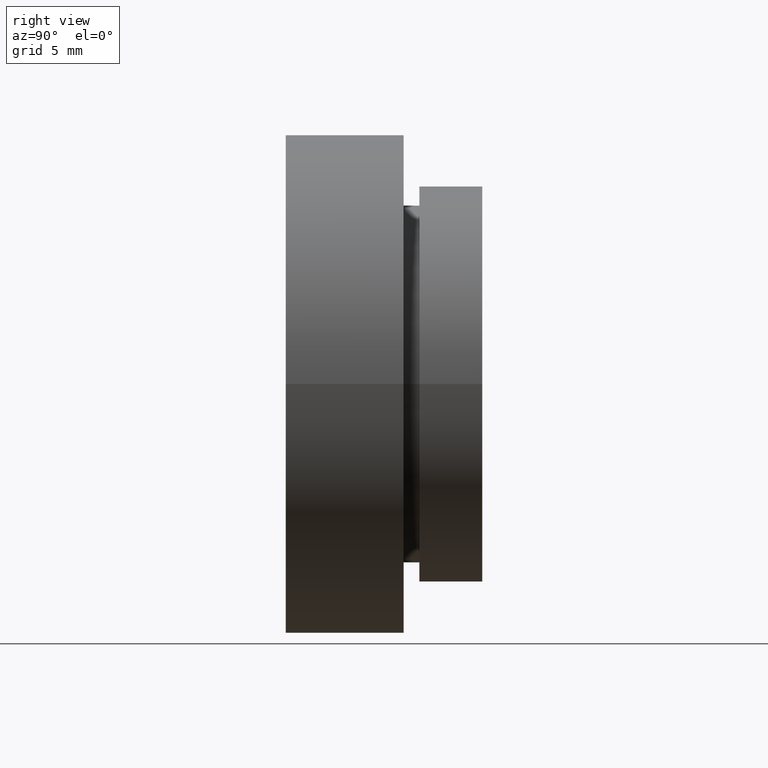
[diagram: clean part render]
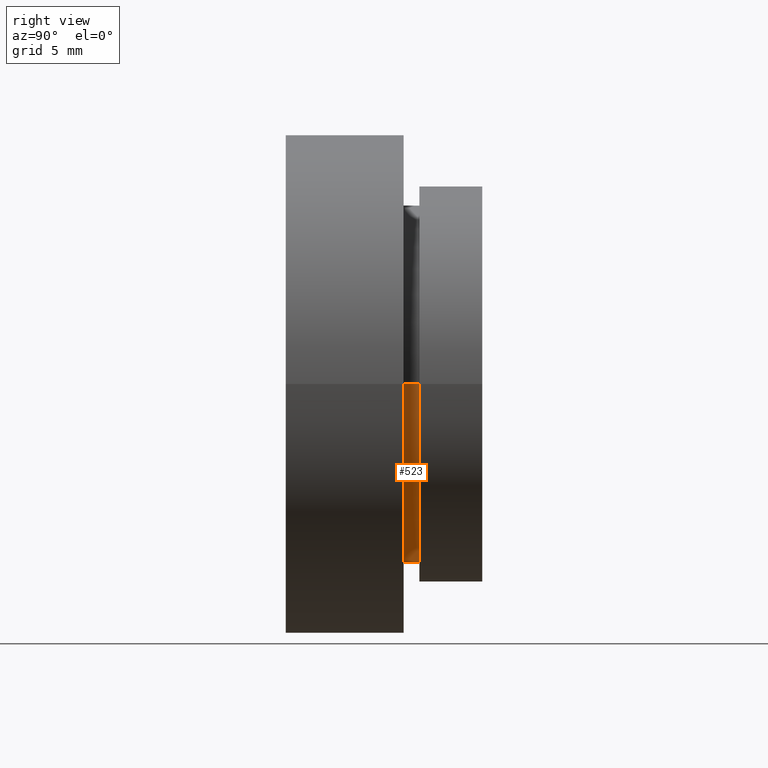
[diagram: same view with one face highlighted and labeled with its STEP entity id]
A machine part, right view. The second image highlights one B-rep face of the part: STEP entity #523.
In plain terms, the highlighted cylindrical surface (partial cylindrical patch) has radius 11.35 mm, axis along (-0, 1, -0).
Its self-contained STEP definition (entity closure, byte-faithful):
#38 = EDGE_CURVE ( 'NONE', #392, #189, #133, .T. ) ;
#44 = CARTESIAN_POINT ( 'NONE',  ( 11.35000000000000100, 8.500000000000000000, 1.389974117032245900E-015 ) ) ;
#46 = AXIS2_PLACEMENT_3D ( 'NONE', #501, #106, #545 ) ;
#56 = ORIENTED_EDGE ( 'NONE', *, *, #38, .T. ) ;
#63 = CARTESIAN_POINT ( 'NONE',  ( 11.35000000000000100, 7.500000000000000000, 1.389974117032245900E-015 ) ) ;
#68 = VECTOR ( 'NONE', #530, 1000.000000000000000 ) ;
#91 = FACE_OUTER_BOUND ( 'NONE', #144, .T. ) ;
#106 = DIRECTION ( 'NONE',  ( -1.224646799147351000E-016, 1.000000000000000000, -0.0000000000000000000 ) ) ;
#124 = VERTEX_POINT ( 'NONE', #44 ) ;
#130 = CYLINDRICAL_SURFACE ( 'NONE', #173, 11.35000000000000000 ) ;
#133 = LINE ( 'NONE', #185, #352 ) ;
#144 = EDGE_LOOP ( 'NONE', ( #213, #344, #56, #400 ) ) ;
#173 = AXIS2_PLACEMENT_3D ( 'NONE', #272, #509, #610 ) ;
#185 = CARTESIAN_POINT ( 'NONE',  ( -11.35000000000000000, 16.88601823708207700, 0.0000000000000000000 ) ) ;
#189 = VERTEX_POINT ( 'NONE', #496 ) ;
#213 = ORIENTED_EDGE ( 'NONE', *, *, #379, .F. ) ;
#272 = CARTESIAN_POINT ( 'NONE',  ( 0.0000000000000000000, 16.88601823708207700, 0.0000000000000000000 ) ) ;
#303 = EDGE_CURVE ( 'NONE', #124, #189, #424, .T. ) ;
#326 = DIRECTION ( 'NONE',  ( -1.000000000000000000, -1.528390727732869900E-016, 0.0000000000000000000 ) ) ;
#344 = ORIENTED_EDGE ( 'NONE', *, *, #440, .T. ) ;
#352 = VECTOR ( 'NONE', #382, 1000.000000000000000 ) ;
#379 = EDGE_CURVE ( 'NONE', #558, #124, #591, .T. ) ;
#382 = DIRECTION ( 'NONE',  ( -1.224646799147351000E-016, 1.000000000000000000, -0.0000000000000000000 ) ) ;
#392 = VERTEX_POINT ( 'NONE', #533 ) ;
#400 = ORIENTED_EDGE ( 'NONE', *, *, #303, .F. ) ;
#424 = CIRCLE ( 'NONE', #478, 11.35000000000000000 ) ;
#440 = EDGE_CURVE ( 'NONE', #558, #392, #452, .T. ) ;
#452 = CIRCLE ( 'NONE', #46, 11.35000000000000000 ) ;
#467 = DIRECTION ( 'NONE',  ( -1.224646799147351000E-016, 1.000000000000000000, -0.0000000000000000000 ) ) ;
#478 = AXIS2_PLACEMENT_3D ( 'NONE', #609, #467, #326 ) ;
#496 = CARTESIAN_POINT ( 'NONE',  ( -11.34999999999999800, 8.499999999999996400, 0.0000000000000000000 ) ) ;
#501 = CARTESIAN_POINT ( 'NONE',  ( 1.149455719078122700E-015, 7.499999999999998200, 0.0000000000000000000 ) ) ;
#509 = DIRECTION ( 'NONE',  ( -1.224646799147351000E-016, 1.000000000000000000, -0.0000000000000000000 ) ) ;
#523 = ADVANCED_FACE ( 'NONE', ( #91 ), #130, .T. ) ;
#530 = DIRECTION ( 'NONE',  ( -1.224646799147351000E-016, 1.000000000000000000, -0.0000000000000000000 ) ) ;
#533 = CARTESIAN_POINT ( 'NONE',  ( -11.34999999999999800, 7.499999999999996400, 0.0000000000000000000 ) ) ;
#545 = DIRECTION ( 'NONE',  ( -1.000000000000000000, -1.528390727732869900E-016, 0.0000000000000000000 ) ) ;
#558 = VERTEX_POINT ( 'NONE', #63 ) ;
#580 = CARTESIAN_POINT ( 'NONE',  ( 11.35000000000000000, 16.88601823708207700, 1.389974117032245900E-015 ) ) ;
#591 = LINE ( 'NONE', #580, #68 ) ;
#609 = CARTESIAN_POINT ( 'NONE',  ( 1.026991039163387700E-015, 8.499999999999998200, 0.0000000000000000000 ) ) ;
#610 = DIRECTION ( 'NONE',  ( -1.000000000000000000, 0.0000000000000000000, 0.0000000000000000000 ) ) ;